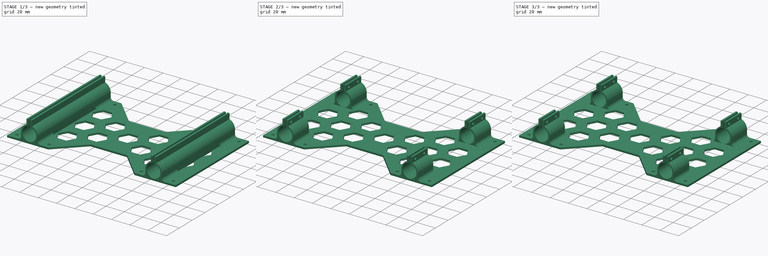
[diagram: build sequence overview — one tinted view per stage of 3, left to right]
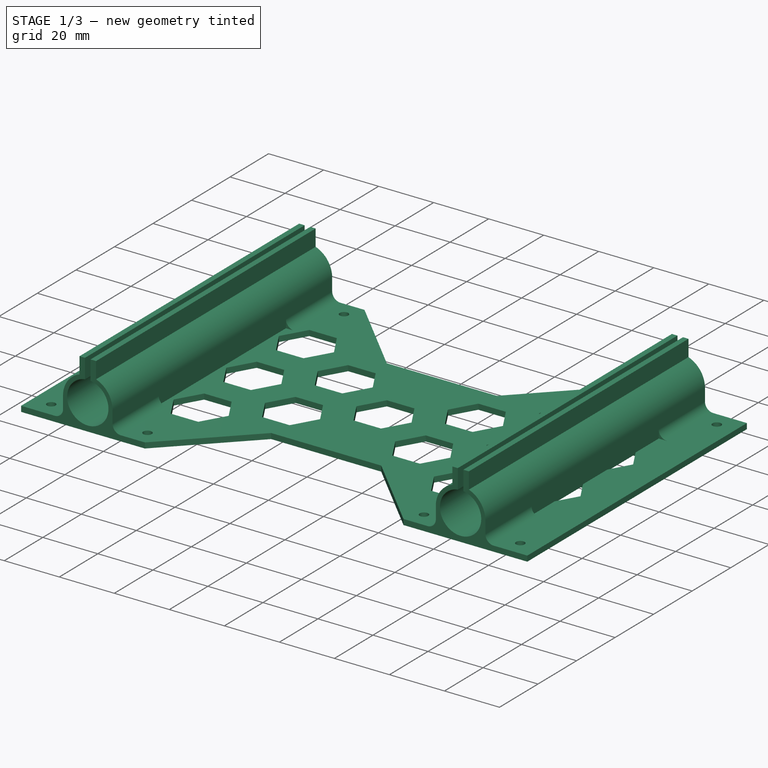
[diagram: stage 1 of 3 — iso view after this stage's code; geometry added in this stage tinted green]
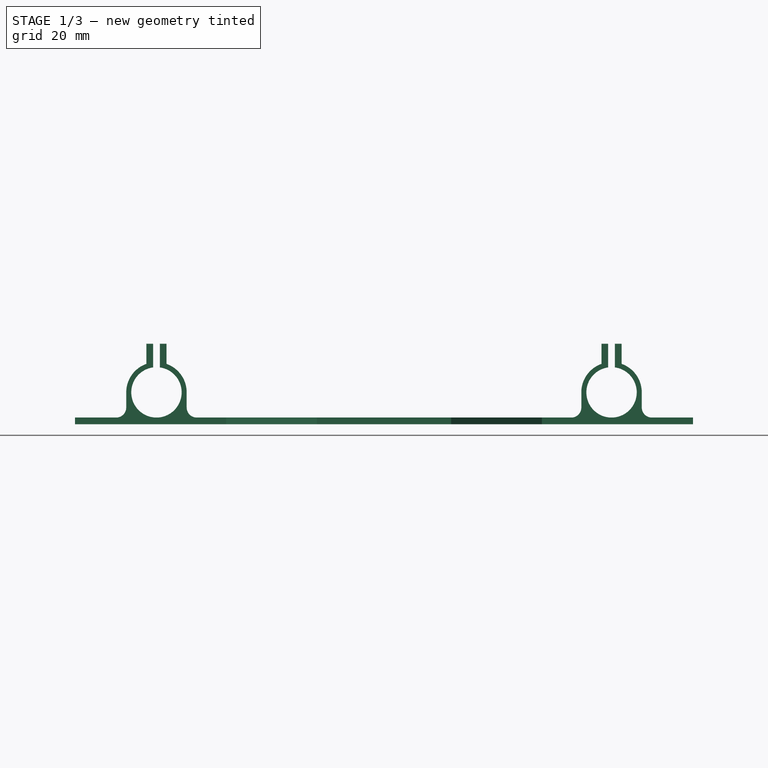
[diagram: stage 1 of 3 — front view after this stage's code; geometry added in this stage tinted green]
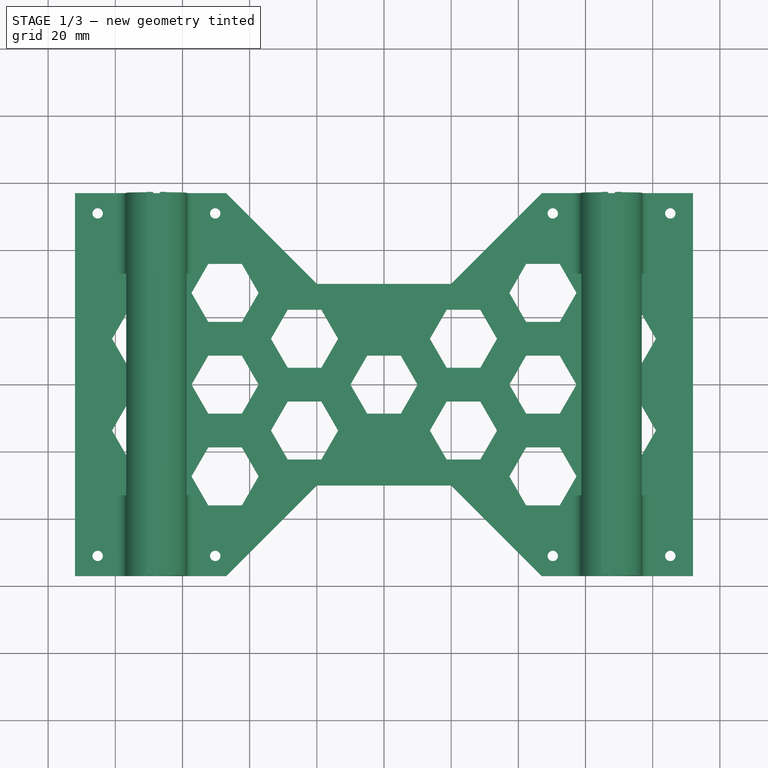
[diagram: stage 1 of 3 — top view after this stage's code; geometry added in this stage tinted green]
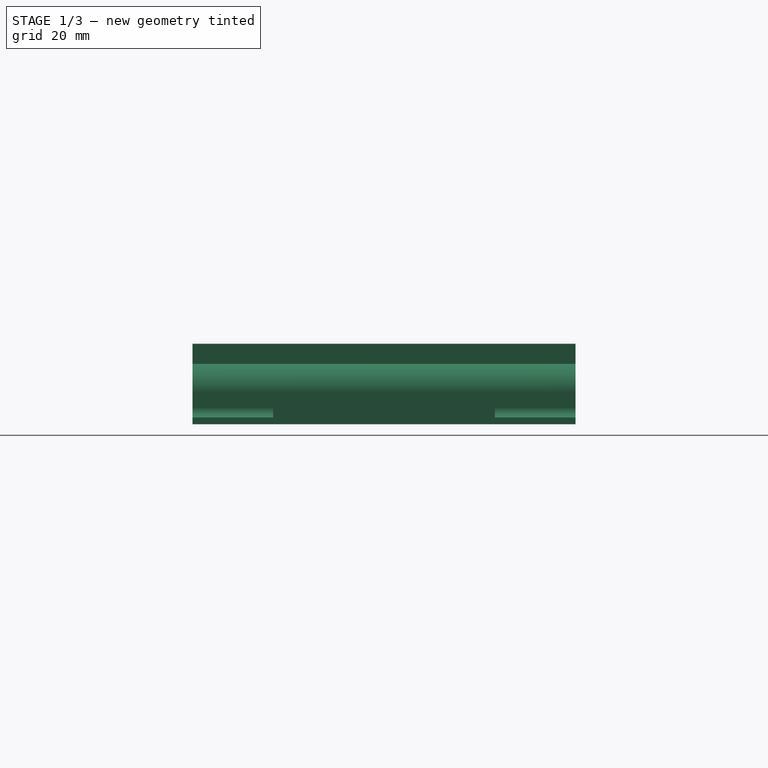
[diagram: stage 1 of 3 — right view after this stage's code; geometry added in this stage tinted green]
FCSTD DOCUMENT  (FreeCAD 0.16R6707 (Git))
Label: T-MAX Y Bearing Holders
License: All rights reserved
LicenseURL: http://en.wikipedia.org/wiki/All_rights_reserved
objects: Sketcher::SketchObject×3, PartDesign::Pad×2, PartDesign::Pocket×1, Part::Fuse×1, Part::Feature×1, Part::Fillet×1
note: 12 computed .brp shape members not serialized (recipe doc carries the construction recipe); baked Part::Feature solids carry a one-line shape summary decoded from their .brp

FEATURE [Sketcher::SketchObject] Sketch001
  Placement = pos=(0,0,0) rot=(1,0,0;1.5708rad)
  expr: Constraints[40] = Constraints.LM8UU_Radius + 0.5
  expr: Constraints.Constraint19 = Constraints.LM8UU_Radius + 1.5
  sketch-geometry (28):
    g0: LineSegment StartX=-58.75 StartY=1.5 StartZ=0 EndX=-58.75 EndY=9.5 EndZ=0
    g1: LineSegment StartX=-76.75 StartY=9.5 StartZ=0 EndX=-76.75 EndY=1.5 EndZ=0
    g2: LineSegment StartX=-64.75 StartY=17.9853 StartZ=0 EndX=-64.75 EndY=23.9853 EndZ=0
    g3: LineSegment StartX=-70.75 StartY=23.9853 StartZ=0 EndX=-70.75 EndY=17.9853 EndZ=0
    g4: ArcOfCircle CenterX=-67.75 CenterY=9.5 CenterZ=0 NormalX=0 NormalY=0 NormalZ=1 Radius=9 StartAngle=1.91063 EndAngle=3.14159
    g5: LineSegment StartX=-68.75 StartY=23.9853 StartZ=0 EndX=-68.75 EndY=16.933 EndZ=0
    g6: LineSegment StartX=-66.75 StartY=23.9853 StartZ=0 EndX=-66.75 EndY=16.933 EndZ=0
    g7: LineSegment StartX=-70.75 StartY=23.9853 StartZ=0 EndX=-68.75 EndY=23.9853 EndZ=0
    g8: LineSegment StartX=-66.75 StartY=23.9853 StartZ=0 EndX=-64.75 EndY=23.9853 EndZ=0
    g9: ArcOfCircle CenterX=-67.75 CenterY=9.5 CenterZ=0 NormalX=0 NormalY=0 NormalZ=1 Radius=9 StartAngle=0 EndAngle=1.23096
    g10: ArcOfCircle CenterX=-67.75 CenterY=9.5 CenterZ=0 NormalX=0 NormalY=0 NormalZ=1 Radius=7.5 StartAngle=1.70453 EndAngle=7.72025
    g11: LineSegment [constr] StartX=-68.75 StartY=23.9853 StartZ=0 EndX=-66.75 EndY=23.9853 EndZ=0
    g12: LineSegment StartX=-76.75 StartY=1.5 StartZ=0 EndX=-58.75 EndY=1.5 EndZ=0
    g13: LineSegment [constr] StartX=-67.75 StartY=23.9853 StartZ=0 EndX=-67.75 EndY=1.5 EndZ=0
    g14: LineSegment StartX=76.75 StartY=1.5 StartZ=0 EndX=76.75 EndY=9.5 EndZ=0
    g15: LineSegment StartX=58.75 StartY=9.5 StartZ=0 EndX=58.75 EndY=1.5 EndZ=0
    g16: LineSegment StartX=70.75 StartY=17.9853 StartZ=0 EndX=70.75 EndY=23.9853 EndZ=0
    g17: LineSegment StartX=64.75 StartY=23.9853 StartZ=0 EndX=64.75 EndY=17.9853 EndZ=0
    g18: ArcOfCircle CenterX=67.75 CenterY=9.5 CenterZ=0 NormalX=0 NormalY=0 NormalZ=1 Radius=9 StartAngle=1.91063 EndAngle=3.14159
    g19: LineSegment StartX=66.75 StartY=23.9853 StartZ=0 EndX=66.75 EndY=16.933 EndZ=0
    g20: LineSegment StartX=68.75 StartY=23.9853 StartZ=0 EndX=68.75 EndY=16.933 EndZ=0
    g21: LineSegment StartX=64.75 StartY=23.9853 StartZ=0 EndX=66.75 EndY=23.9853 EndZ=0
    g22: LineSegment StartX=68.75 StartY=23.9853 StartZ=0 EndX=70.75 EndY=23.9853 EndZ=0
    g23: ArcOfCircle CenterX=67.75 CenterY=9.5 CenterZ=0 NormalX=0 NormalY=0 NormalZ=1 Radius=9 StartAngle=0 EndAngle=1.23096
    g24: ArcOfCircle CenterX=67.75 CenterY=9.5 CenterZ=0 NormalX=0 NormalY=0 NormalZ=1 Radius=7.5 StartAngle=1.70453 EndAngle=7.72025
    g25: LineSegment [constr] StartX=66.75 StartY=23.9853 StartZ=0 EndX=68.75 EndY=23.9853 EndZ=0
    g26: LineSegment StartX=58.75 StartY=1.5 StartZ=0 EndX=76.75 EndY=1.5 EndZ=0
    g27: LineSegment [constr] StartX=67.75 StartY=23.9853 StartZ=0 EndX=67.75 EndY=1.5 EndZ=0
  constraints (85):
    c: Vertical(g0)
    c: Vertical(g1)
    c: Vertical(g2)
    c: Vertical(g3)
    c: Radius(g4) = 9  'Constraint19'
    c: Vertical(g5)  'Constraint13'
    c: Vertical(g6)  'Constraint12'
    c: Coincident(g7,g3)  'Constraint9'
    c: Coincident(g7,g5)
    c: Coincident(g8,g6)
    c: Coincident(g8,g2)
    c: Horizontal(g8)
    c: Horizontal(g7)
    c: Coincident(g4,g3)
    c: Coincident(g9,g2)
    c: DistanceY(g-1,g1) = 1.5
    c: DistanceY(g3,g3) = 6
    c: DistanceX(g8,g8) = 2
    c: Equal(g4,g9)
    c: Coincident(g4,g1)
    c: Tangent(g1,g4) = -1.5708
    c: Coincident(g0,g9)
    c: Tangent(g0,g9) = -1.5708
    c: Radius(g10) = 7.5  'LM8UU_Radius'
    c: Coincident(g10,g5)  'Constraint31'
    c: Coincident(g10,g6)  'Constraint33'
    c: DistanceX(g4,g-1) = 67.75  'Constraint32'
    c: Coincident(g11,g5)  'Constraint30'
    c: Coincident(g11,g6)  'Constraint29'
    c: Horizontal(g11)
    c: Equal(g8,g11)
    c: Equal(g11,g7)
    c: Equal(g3,g2)
    c: Horizontal(g12)
    c: PointOnObject(g13,g11)
    c: PointOnObject(g13,g12)
    c: Vertical(g13)
    c: PointOnObject(g4,g13)
    c: Coincident(g1,g12)
    c: Coincident(g0,g12)
    c: Distance(g4,g12) = 8
    c: Coincident(g4,g9)
    c: Coincident(g4,g10)
    c: Vertical(g14)
    c: Vertical(g15)
    c: Vertical(g16)
    c: Vertical(g17)
    c: Equal(g4,g18) = 9  'Constraint19'
    c: Vertical(g19)  'Constraint13'
    c: Vertical(g20)  'Constraint12'
    c: Coincident(g21,g17)  'Constraint9'
    c: Coincident(g21,g19)
    c: Coincident(g22,g20)
    c: Coincident(g22,g16)
    c: Horizontal(g22)
    c: Horizontal(g21)
    c: Coincident(g18,g17)
    c: Coincident(g23,g16)
    c: Equal(g3,g17) = 5
    c: Equal(g8,g22) = 2
    c: Equal(g18,g23)
    c: Coincident(g18,g15)
    c: Tangent(g15,g18) = -1.5708
    c: Coincident(g14,g23)
    c: Tangent(g14,g23) = -1.5708
    c: Equal(g10,g24) = 7.5  'LM8UU_Radius'
    c: Coincident(g24,g19)  'Constraint31'
    c: Coincident(g24,g20)  'Constraint33'
    c: Coincident(g25,g19)  'Constraint30'
    c: Coincident(g25,g20)  'Constraint29'
    c: Horizontal(g25)
    c: Equal(g22,g25)
    c: Equal(g25,g21)
    c: Equal(g17,g16)
    c: Horizontal(g26)
    c: PointOnObject(g27,g25)
    c: PointOnObject(g27,g26)
    c: Vertical(g27)
    c: PointOnObject(g18,g27)
    c: Coincident(g15,g26)
    c: Coincident(g14,g26)
    c: Distance(g18,g26) = 8
    c: Coincident(g18,g23)
    c: Coincident(g18,g24)
    c: Symmetric(g0,g15,g-2)
FEATURE [PartDesign::Pad] Pad001
  Length = 57
  Length2 = 57
  Placement = pos=(0,0,0) rot=(1,0,0;1.5708rad)
  Sketch = -> Sketch001
  Type = 4
FEATURE [Part::Feature] Fusion001
  shape: bbox 184 x 114 x 23.99 mm, 180 faces (baked)
FEATURE [Part::Fillet] Fillet
  Base = -> Fusion001
  Edges = 24 edges r=3: [Edge115,Edge118,Edge124,Edge127,Edge131,Edge134,Edge140,Edge143,Edge356,Edge361,Edge372,Edge377,Edge387,Edge393,Edge404,Edge410,Edge421,Edge432,Edge445,Edge456,Edge469,Edge480,Edge493,Edge504]
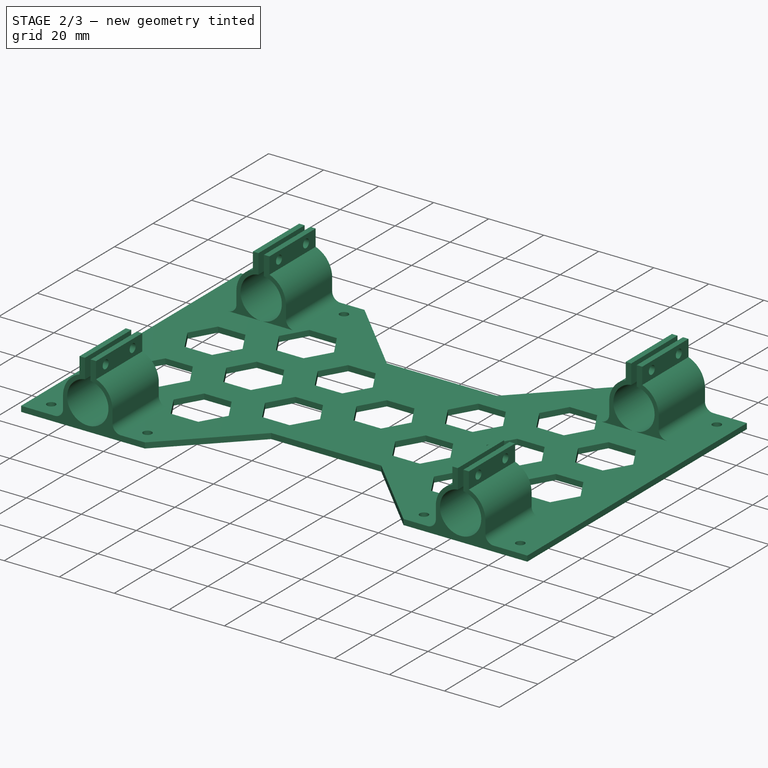
[diagram: stage 2 of 3 — iso view after this stage's code; geometry added in this stage tinted green]
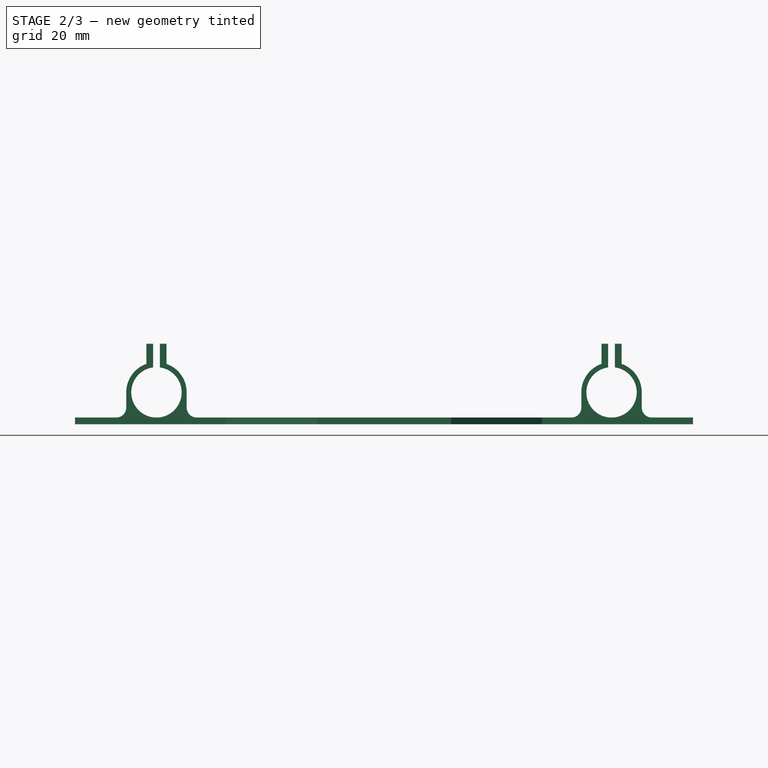
[diagram: stage 2 of 3 — front view after this stage's code; geometry added in this stage tinted green]
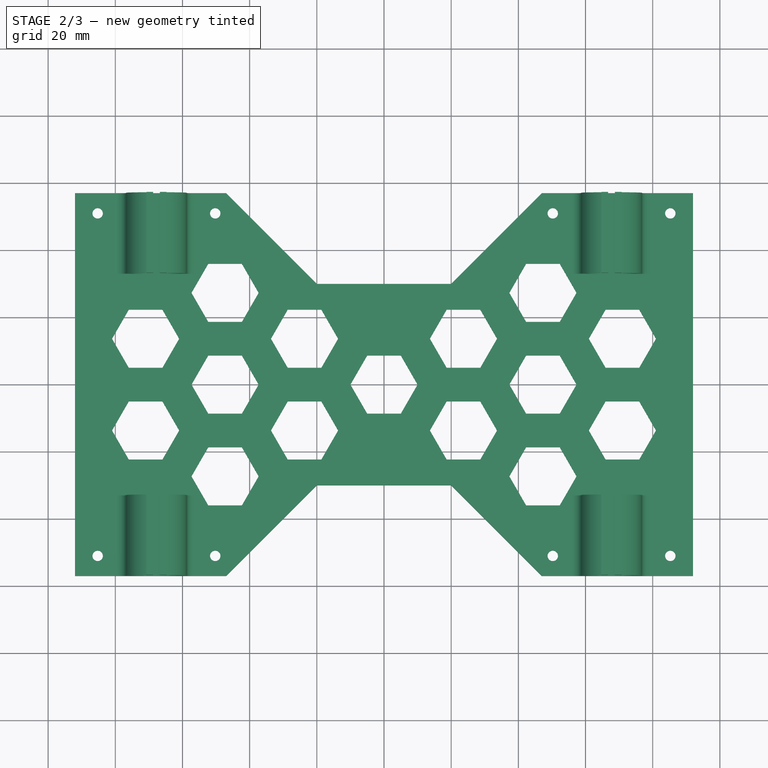
[diagram: stage 2 of 3 — top view after this stage's code; geometry added in this stage tinted green]
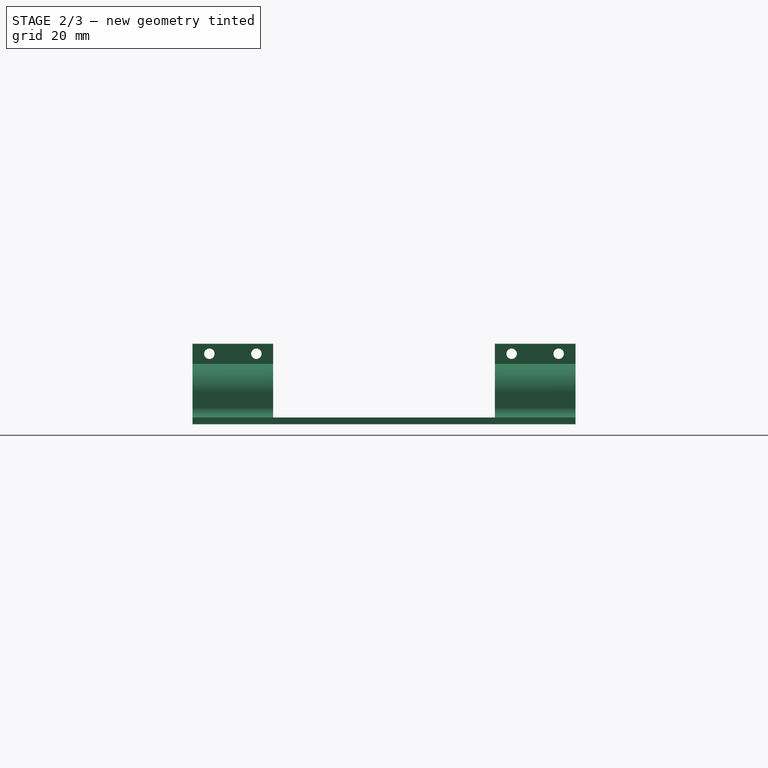
[diagram: stage 2 of 3 — right view after this stage's code; geometry added in this stage tinted green]
FEATURE [Sketcher::SketchObject] Sketch002
  Placement = pos=(-76.75,0,0) rot=(0.707107,0,-0.707107;3.14159rad)
  Support = -> Pad001 [Face17]
  sketch-geometry (11):
    g0: LineSegment StartX=-25.5 StartY=33 StartZ=0 EndX=-1.5 EndY=33 EndZ=0
    g1: LineSegment StartX=-1.5 StartY=33 StartZ=0 EndX=-1.5 EndY=-33 EndZ=0
    g2: LineSegment StartX=-1.5 StartY=-33 StartZ=0 EndX=-25.5 EndY=-33 EndZ=0
    g3: LineSegment StartX=-25.5 StartY=-33 StartZ=0 EndX=-25.5 EndY=33 EndZ=0
    g4: Circle CenterX=-21 CenterY=52 CenterZ=0 NormalX=0 NormalY=0 NormalZ=1 Radius=1.55
    g5: Circle CenterX=-21 CenterY=38 CenterZ=0 NormalX=0 NormalY=0 NormalZ=1 Radius=1.55
    g6: LineSegment [constr] StartX=-21 StartY=52 StartZ=0 EndX=-21 EndY=38 EndZ=0
    g7: Circle CenterX=-21 CenterY=-38 CenterZ=0 NormalX=0 NormalY=0 NormalZ=1 Radius=1.55
    g8: Circle CenterX=-21 CenterY=-52 CenterZ=0 NormalX=0 NormalY=0 NormalZ=1 Radius=1.55
    g9: LineSegment [constr] StartX=-21 StartY=-38 StartZ=0 EndX=-21 EndY=-52 EndZ=0
    g10: LineSegment [constr] StartX=-21 StartY=38 StartZ=0 EndX=-21 EndY=-38 EndZ=0
  constraints (31):
    c: Coincident(g0,g1)
    c: Coincident(g1,g2)
    c: Coincident(g2,g3)
    c: Coincident(g3,g0)
    c: Horizontal(g0)
    c: Horizontal(g2)
    c: Vertical(g1)
    c: Vertical(g3)
    c: DistanceX(g-2,g0) = -1.5
    c: Symmetric(g1,g0,g-1)
    c: Distance(g0) = 24
    c: DistanceY(g3,g3) = 66
    c: DistanceX(g4,g-1) = 21
    c: Coincident(g6,g4)
    c: Coincident(g6,g5)
    c: Vertical(g6)
    c: Radius(g4) = 1.55
    c: Equal(g4,g5)
    c: Distance(g5,g0) = 5
    c: Distance(g6) = 14
    c: Coincident(g9,g7)
    c: Coincident(g9,g8)
    c: Vertical(g9)
    c: Equal(g4,g7) = 1.55
    c: Equal(g7,g8)
    c: Equal(g6,g9) = 14
    c: Distance(g7,g2) = 5
    c: Equal(g9,g6)
    c: Coincident(g10,g5)
    c: Coincident(g10,g7)
    c: Vertical(g10)
FEATURE [PartDesign::Pocket] Pocket
  Length = 0
  Placement = pos=(0,0,0) rot=(1,0,0;1.5708rad)
  Sketch = -> Sketch002
  Type = 3
  UpToFace = -> Pad001 [Face5]
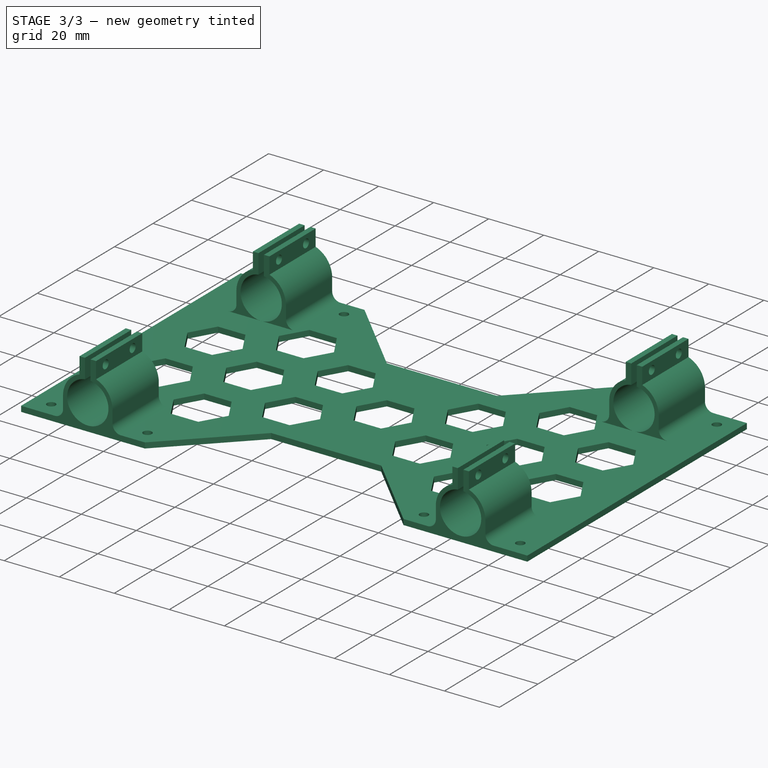
[diagram: stage 3 of 3 — iso view after this stage's code; geometry added in this stage tinted green]
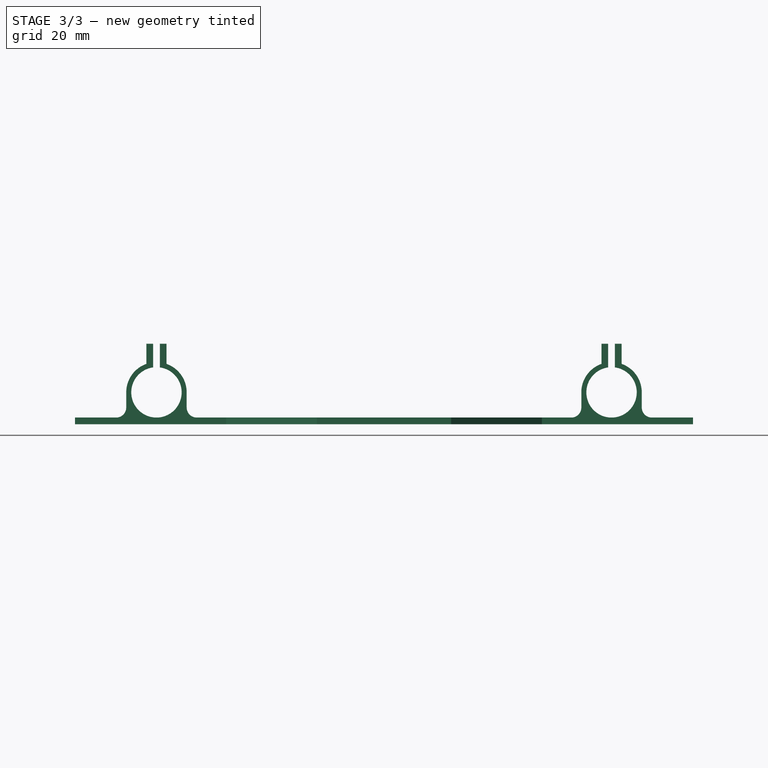
[diagram: stage 3 of 3 — front view after this stage's code; geometry added in this stage tinted green]
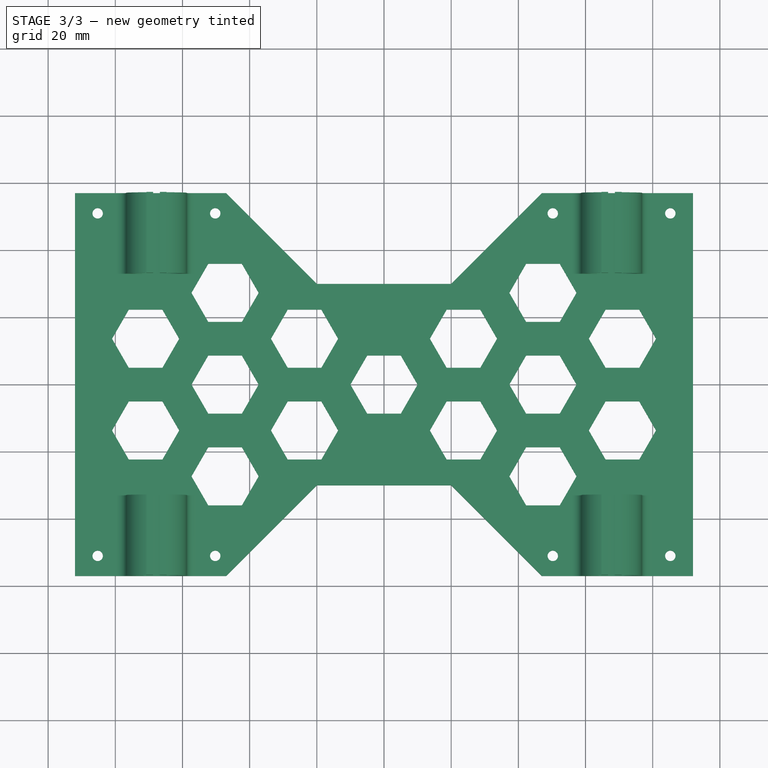
[diagram: stage 3 of 3 — top view after this stage's code; geometry added in this stage tinted green]
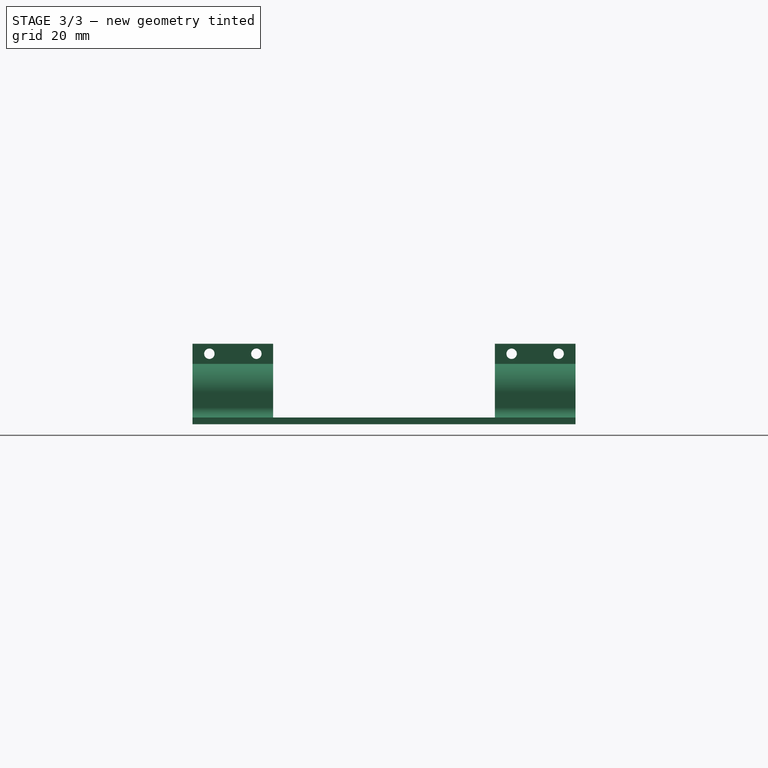
[diagram: stage 3 of 3 — right view after this stage's code; geometry added in this stage tinted green]
FEATURE [Sketcher::SketchObject] Sketch
  sketch-geometry (143):
    g0: LineSegment StartX=92 StartY=57 StartZ=0 EndX=92 EndY=-57 EndZ=0
    g1: LineSegment StartX=-92 StartY=-57 StartZ=0 EndX=-92 EndY=57 EndZ=0
    g2: Circle CenterX=-85.25 CenterY=51 CenterZ=0 NormalX=0 NormalY=0 NormalZ=1 Radius=1.55
    g3: LineSegment StartX=-47 StartY=57 StartZ=0 EndX=-20 EndY=30 EndZ=0
    g4: LineSegment StartX=20 StartY=30 StartZ=0 EndX=47 EndY=57 EndZ=0
    g5: LineSegment StartX=-20 StartY=30 StartZ=0 EndX=20 EndY=30 EndZ=0
    g6: LineSegment StartX=-92 StartY=57 StartZ=0 EndX=-47 EndY=57 EndZ=0
    g7: LineSegment StartX=47 StartY=57 StartZ=0 EndX=92 EndY=57 EndZ=0
    g8: Circle CenterX=-50.25 CenterY=51 CenterZ=0 NormalX=0 NormalY=0 NormalZ=1 Radius=1.55
    g9: LineSegment [constr] StartX=-85.25 StartY=51 StartZ=0 EndX=-50.25 EndY=51 EndZ=0
    g10: Circle CenterX=85.25 CenterY=51 CenterZ=0 NormalX=0 NormalY=0 NormalZ=1 Radius=1.55
    g11: Circle CenterX=50.25 CenterY=51 CenterZ=0 NormalX=0 NormalY=0 NormalZ=1 Radius=1.55
    g12: LineSegment [constr] StartX=85.25 StartY=51 StartZ=0 EndX=50.25 EndY=51 EndZ=0
    g13: Circle CenterX=-85.25 CenterY=-51 CenterZ=0 NormalX=0 NormalY=0 NormalZ=1 Radius=1.55
    g14: LineSegment StartX=-47 StartY=-57 StartZ=0 EndX=-20 EndY=-30 EndZ=0
    g15: LineSegment StartX=20 StartY=-30 StartZ=0 EndX=47 EndY=-57 EndZ=0
    g16: LineSegment StartX=-20 StartY=-30 StartZ=0 EndX=20 EndY=-30 EndZ=0
    g17: LineSegment StartX=-92 StartY=-57 StartZ=0 EndX=-47 EndY=-57 EndZ=0
    g18: LineSegment StartX=47 StartY=-57 StartZ=0 EndX=92 EndY=-57 EndZ=0
    g19: Circle CenterX=-50.25 CenterY=-51 CenterZ=0 NormalX=0 NormalY=0 NormalZ=1 Radius=1.55
    g20: LineSegment [constr] StartX=-85.25 StartY=-51 StartZ=0 EndX=-50.25 EndY=-51 EndZ=0
    g21: Circle CenterX=85.25 CenterY=-51 CenterZ=0 NormalX=0 NormalY=0 NormalZ=1 Radius=1.55
    g22: Circle CenterX=50.25 CenterY=-51 CenterZ=0 NormalX=0 NormalY=0 NormalZ=1 Radius=1.55
    g23: LineSegment [constr] StartX=85.25 StartY=-51 StartZ=0 EndX=50.25 EndY=-51 EndZ=0
    g24: LineSegment StartX=-65.9808 StartY=22.3205 StartZ=0 EndX=-75.9808 EndY=22.3205 EndZ=0
    g25: LineSegment StartX=-75.9808 StartY=22.3205 StartZ=0 EndX=-80.9808 EndY=13.6603 EndZ=0
    g26: LineSegment StartX=-80.9808 StartY=13.6603 StartZ=0 EndX=-75.9808 EndY=5 EndZ=0
    g27: LineSegment StartX=-75.9808 StartY=5 StartZ=0 EndX=-65.9808 EndY=5 EndZ=0
    g28: LineSegment StartX=-65.9808 StartY=5 StartZ=0 EndX=-60.9808 EndY=13.6603 EndZ=0
    g29: LineSegment StartX=-60.9808 StartY=13.6603 StartZ=0 EndX=-65.9808 EndY=22.3205 EndZ=0
    g30: Circle [constr] CenterX=-70.9808 CenterY=13.6603 CenterZ=0 NormalX=0 NormalY=0 NormalZ=1 Radius=10
    g31: LineSegment StartX=-42.3205 StartY=8.66025 StartZ=0 EndX=-52.3205 EndY=8.66025 EndZ=0
    g32: LineSegment StartX=-52.3205 StartY=8.66025 StartZ=0 EndX=-57.3205 EndY=0 EndZ=0
    g33: LineSegment StartX=-57.3205 StartY=0 StartZ=0 EndX=-52.3205 EndY=-8.66025 EndZ=0
    g34: LineSegment StartX=-52.3205 StartY=-8.66025 StartZ=0 EndX=-42.3205 EndY=-8.66025 EndZ=0
    g35: LineSegment StartX=-42.3205 StartY=-8.66025 StartZ=0 EndX=-37.3205 EndY=0 EndZ=0
    g36: LineSegment StartX=-37.3205 StartY=0 StartZ=0 EndX=-42.3205 EndY=8.66025 EndZ=0
    g37: Circle [constr] CenterX=-47.3205 CenterY=0 CenterZ=0 NormalX=0 NormalY=0 NormalZ=1 Radius=10
    g38: LineSegment [constr] StartX=-60.9808 StartY=13.6603 StartZ=0 EndX=-52.3205 EndY=8.66025 EndZ=0
    g39: LineSegment StartX=-65.9808 StartY=-5 StartZ=0 EndX=-75.9808 EndY=-5 EndZ=0
    g40: LineSegment StartX=-75.9808 StartY=-5 StartZ=0 EndX=-80.9808 EndY=-13.6603 EndZ=0
    g41: LineSegment StartX=-80.9808 StartY=-13.6603 StartZ=0 EndX=-75.9808 EndY=-22.3205 EndZ=0
    g42: LineSegment StartX=-75.9808 StartY=-22.3205 StartZ=0 EndX=-65.9808 EndY=-22.3205 EndZ=0
    g43: LineSegment StartX=-65.9808 StartY=-22.3205 StartZ=0 EndX=-60.9808 EndY=-13.6603 EndZ=0
    g44: LineSegment StartX=-60.9808 StartY=-13.6603 StartZ=0 EndX=-65.9808 EndY=-5 EndZ=0
    g45: Circle [constr] CenterX=-70.9808 CenterY=-13.6603 CenterZ=0 NormalX=0 NormalY=0 NormalZ=1 Radius=10
    g46: LineSegment [constr] StartX=-52.3205 StartY=-8.66025 StartZ=0 EndX=-60.9808 EndY=-13.6603 EndZ=0
    g47: LineSegment StartX=-18.6603 StartY=22.3205 StartZ=0 EndX=-28.6603 EndY=22.3205 EndZ=0
    g48: LineSegment StartX=-28.6603 StartY=22.3205 StartZ=0 EndX=-33.6603 EndY=13.6603 EndZ=0
    g49: LineSegment StartX=-33.6603 StartY=13.6603 StartZ=0 EndX=-28.6603 EndY=5 EndZ=0
    g50: LineSegment StartX=-28.6603 StartY=5 StartZ=0 EndX=-18.6603 EndY=5 EndZ=0
    g51: LineSegment StartX=-18.6603 StartY=5 StartZ=0 EndX=-13.6603 EndY=13.6603 EndZ=0
    g52: LineSegment StartX=-13.6603 StartY=13.6603 StartZ=0 EndX=-18.6603 EndY=22.3205 EndZ=0
    g53: Circle [constr] CenterX=-23.6603 CenterY=13.6603 CenterZ=0 NormalX=0 NormalY=0 NormalZ=1 Radius=10
    g54: LineSegment StartX=5 StartY=8.66025 StartZ=0 EndX=-5 EndY=8.66025 EndZ=0
    g55: LineSegment StartX=-5 StartY=8.66025 StartZ=0 EndX=-10 EndY=0 EndZ=0
    g56: LineSegment StartX=-10 StartY=0 StartZ=0 EndX=-5 EndY=-8.66025 EndZ=0
    g57: LineSegment StartX=-5 StartY=-8.66025 StartZ=0 EndX=5 EndY=-8.66025 EndZ=0
    g58: LineSegment StartX=5 StartY=-8.66025 StartZ=0 EndX=10 EndY=0 EndZ=0
    g59: LineSegment StartX=10 StartY=0 StartZ=0 EndX=5 EndY=8.66025 EndZ=0
    g60: Circle [constr] CenterX=0 CenterY=0 CenterZ=0 NormalX=0 NormalY=0 NormalZ=1 Radius=10
    g61: LineSegment [constr] StartX=-13.6603 StartY=13.6603 StartZ=0 EndX=-5 EndY=8.66025 EndZ=0
    g62: LineSegment StartX=-18.6603 StartY=-5 StartZ=0 EndX=-28.6603 EndY=-5 EndZ=0
    g63: LineSegment StartX=-28.6603 StartY=-5 StartZ=0 EndX=-33.6603 EndY=-13.6603 EndZ=0
    g64: LineSegment StartX=-33.6603 StartY=-13.6603 StartZ=0 EndX=-28.6603 EndY=-22.3205 EndZ=0
    g65: LineSegment StartX=-28.6603 StartY=-22.3205 StartZ=0 EndX=-18.6603 EndY=-22.3205 EndZ=0
    g66: LineSegment StartX=-18.6603 StartY=-22.3205 StartZ=0 EndX=-13.6603 EndY=-13.6603 EndZ=0
    g67: LineSegment StartX=-13.6603 StartY=-13.6603 StartZ=0 EndX=-18.6603 EndY=-5 EndZ=0
    g68: Circle [constr] CenterX=-23.6603 CenterY=-13.6603 CenterZ=0 NormalX=0 NormalY=0 NormalZ=1 Radius=10
    g69: LineSegment [constr] StartX=-5 StartY=-8.66025 StartZ=0 EndX=-13.6603 EndY=-13.6603 EndZ=0
    g70: LineSegment [constr] StartX=-37.3205 StartY=0 StartZ=0 EndX=-28.6603 EndY=5 EndZ=0
    g71: LineSegment StartX=28.6603 StartY=22.3205 StartZ=0 EndX=18.6603 EndY=22.3205 EndZ=0
    g72: LineSegment StartX=18.6603 StartY=22.3205 StartZ=0 EndX=13.6603 EndY=13.6603 EndZ=0
    g73: LineSegment StartX=13.6603 StartY=13.6603 StartZ=0 EndX=18.6603 EndY=5 EndZ=0
    g74: LineSegment StartX=18.6603 StartY=5 StartZ=0 EndX=28.6603 EndY=5 EndZ=0
    g75: LineSegment StartX=28.6603 StartY=5 StartZ=0 EndX=33.6603 EndY=13.6603 EndZ=0
    g76: LineSegment StartX=33.6603 StartY=13.6603 StartZ=0 EndX=28.6603 EndY=22.3205 EndZ=0
    g77: Circle [constr] CenterX=23.6603 CenterY=13.6603 CenterZ=0 NormalX=0 NormalY=0 NormalZ=1 Radius=10
    g78: LineSegment [constr] StartX=10 StartY=0 StartZ=0 EndX=18.6603 EndY=5 EndZ=0
    g79: LineSegment StartX=28.6603 StartY=-5 StartZ=0 EndX=18.6603 EndY=-5 EndZ=0
    g80: LineSegment StartX=18.6603 StartY=-5 StartZ=0 EndX=13.6603 EndY=-13.6603 EndZ=0
    g81: LineSegment StartX=13.6603 StartY=-13.6603 StartZ=0 EndX=18.6603 EndY=-22.3205 EndZ=0
    g82: LineSegment StartX=18.6603 StartY=-22.3205 StartZ=0 EndX=28.6603 EndY=-22.3205 EndZ=0
    g83: LineSegment StartX=28.6603 StartY=-22.3205 StartZ=0 EndX=33.6603 EndY=-13.6603 EndZ=0
    g84: LineSegment StartX=33.6603 StartY=-13.6603 StartZ=0 EndX=28.6603 EndY=-5 EndZ=0
    g85: Circle [constr] CenterX=23.6603 CenterY=-13.6603 CenterZ=0 NormalX=0 NormalY=0 NormalZ=1 Radius=10
    g86: LineSegment [constr] StartX=10 StartY=0 StartZ=0 EndX=18.6603 EndY=-5 EndZ=0
    g87: LineSegment StartX=52.3205 StartY=8.66025 StartZ=0 EndX=42.3205 EndY=8.66025 EndZ=0
    g88: LineSegment StartX=42.3205 StartY=8.66025 StartZ=0 EndX=37.3205 EndY=0 EndZ=0
    g89: LineSegment StartX=37.3205 StartY=0 StartZ=0 EndX=42.3205 EndY=-8.66025 EndZ=0
    g90: LineSegment StartX=42.3205 StartY=-8.66025 StartZ=0 EndX=52.3205 EndY=-8.66025 EndZ=0
    g91: LineSegment StartX=52.3205 StartY=-8.66025 StartZ=0 EndX=57.3205 EndY=0 EndZ=0
    g92: LineSegment StartX=57.3205 StartY=0 StartZ=0 EndX=52.3205 EndY=8.66025 EndZ=0
    g93: Circle [constr] CenterX=47.3205 CenterY=0 CenterZ=0 NormalX=0 NormalY=0 NormalZ=1 Radius=10
    g94: LineSegment StartX=75.9808 StartY=22.3205 StartZ=0 EndX=65.9808 EndY=22.3205 EndZ=0
    g95: LineSegment StartX=65.9808 StartY=22.3205 StartZ=0 EndX=60.9808 EndY=13.6603 EndZ=0
    g96: LineSegment StartX=60.9808 StartY=13.6603 StartZ=0 EndX=65.9808 EndY=5 EndZ=0
    g97: LineSegment StartX=65.9808 StartY=5 StartZ=0 EndX=75.9808 EndY=5 EndZ=0
    g98: LineSegment StartX=75.9808 StartY=5 StartZ=0 EndX=80.9808 EndY=13.6603 EndZ=0
    g99: LineSegment StartX=80.9808 StartY=13.6603 StartZ=0 EndX=75.9808 EndY=22.3205 EndZ=0
    g100: Circle [constr] CenterX=70.9808 CenterY=13.6603 CenterZ=0 NormalX=0 NormalY=0 NormalZ=1 Radius=10
    g101: LineSegment [constr] StartX=57.3205 StartY=0 StartZ=0 EndX=65.9808 EndY=5 EndZ=0
    g102: LineSegment StartX=75.9808 StartY=-5 StartZ=0 EndX=65.9808 EndY=-5 EndZ=0
    g103: LineSegment StartX=65.9808 StartY=-5 StartZ=0 EndX=60.9808 EndY=-13.6603 EndZ=0
    g104: LineSegment StartX=60.9808 StartY=-13.6603 StartZ=0 EndX=65.9808 EndY=-22.3205 EndZ=0
    g105: LineSegment StartX=65.9808 StartY=-22.3205 StartZ=0 EndX=75.9808 EndY=-22.3205 EndZ=0
    g106: LineSegment StartX=75.9808 StartY=-22.3205 StartZ=0 EndX=80.9808 EndY=-13.6603 EndZ=0
    g107: LineSegment StartX=80.9808 StartY=-13.6603 StartZ=0 EndX=75.9808 EndY=-5 EndZ=0
    g108: Circle [constr] CenterX=70.9808 CenterY=-13.6603 CenterZ=0 NormalX=0 NormalY=0 NormalZ=1 Radius=10
    g109: LineSegment [constr] StartX=57.3205 StartY=0 StartZ=0 EndX=65.9808 EndY=-5 EndZ=0
    g110: LineSegment [constr] StartX=33.6603 StartY=13.6603 StartZ=0 EndX=42.3205 EndY=8.66025 EndZ=0
    g111: LineSegment StartX=-42.3205 StartY=35.9808 StartZ=0 EndX=-52.3205 EndY=35.9808 EndZ=0
    g112: LineSegment StartX=-52.3205 StartY=35.9808 StartZ=0 EndX=-57.3205 EndY=27.3205 EndZ=0
    g113: LineSegment StartX=-57.3205 StartY=27.3205 StartZ=0 EndX=-52.3205 EndY=18.6603 EndZ=0
    g114: LineSegment StartX=-52.3205 StartY=18.6603 StartZ=0 EndX=-42.3205 EndY=18.6603 EndZ=0
    g115: LineSegment StartX=-42.3205 StartY=18.6603 StartZ=0 EndX=-37.3205 EndY=27.3205 EndZ=0
    g116: LineSegment StartX=-37.3205 StartY=27.3205 StartZ=0 EndX=-42.3205 EndY=35.9808 EndZ=0
    g117: Circle [constr] CenterX=-47.3205 CenterY=27.3205 CenterZ=0 NormalX=0 NormalY=0 NormalZ=1 Radius=10
    g118: LineSegment [constr] StartX=-60.9808 StartY=13.6603 StartZ=0 EndX=-52.3205 EndY=18.6603 EndZ=0
    g119: LineSegment StartX=-42.3205 StartY=-18.6603 StartZ=0 EndX=-52.3205 EndY=-18.6603 EndZ=0
    g120: LineSegment StartX=-52.3205 StartY=-18.6603 StartZ=0 EndX=-57.3205 EndY=-27.3205 EndZ=0
    g121: LineSegment StartX=-57.3205 StartY=-27.3205 StartZ=0 EndX=-52.3205 EndY=-35.9808 EndZ=0
    g122: LineSegment StartX=-52.3205 StartY=-35.9808 StartZ=0 EndX=-42.3205 EndY=-35.9808 EndZ=0
    g123: LineSegment StartX=-42.3205 StartY=-35.9808 StartZ=0 EndX=-37.3205 EndY=-27.3205 EndZ=0
    g124: LineSegment StartX=-37.3205 StartY=-27.3205 StartZ=0 EndX=-42.3205 EndY=-18.6603 EndZ=0
    g125: Circle [constr] CenterX=-47.3205 CenterY=-27.3205 CenterZ=0 NormalX=0 NormalY=0 NormalZ=1 Radius=10
    g126: LineSegment [constr] StartX=-52.3205 StartY=-8.66025 StartZ=0 EndX=-52.3205 EndY=-18.6603 EndZ=0
    g127: LineSegment StartX=52.3205 StartY=35.9808 StartZ=0 EndX=42.3205 EndY=35.9808 EndZ=0
    g128: LineSegment StartX=42.3205 StartY=35.9808 StartZ=0 EndX=37.3205 EndY=27.3205 EndZ=0
    g129: LineSegment StartX=37.3205 StartY=27.3205 StartZ=0 EndX=42.3205 EndY=18.6603 EndZ=0
    g130: LineSegment StartX=42.3205 StartY=18.6603 StartZ=0 EndX=52.3205 EndY=18.6603 EndZ=0
    g131: LineSegment StartX=52.3205 StartY=18.6603 StartZ=0 EndX=57.3205 EndY=27.3205 EndZ=0
    g132: LineSegment StartX=57.3205 StartY=27.3205 StartZ=0 EndX=52.3205 EndY=35.9808 EndZ=0
    g133: Circle [constr] CenterX=47.3205 CenterY=27.3205 CenterZ=0 NormalX=0 NormalY=0 NormalZ=1 Radius=10
    g134: LineSegment [constr] StartX=33.6603 StartY=13.6603 StartZ=0 EndX=42.3205 EndY=18.6603 EndZ=0
    g135: LineSegment StartX=52.3205 StartY=-18.6603 StartZ=0 EndX=42.3205 EndY=-18.6603 EndZ=0
    g136: LineSegment StartX=42.3205 StartY=-18.6603 StartZ=0 EndX=37.3205 EndY=-27.3205 EndZ=0
    g137: LineSegment StartX=37.3205 StartY=-27.3205 StartZ=0 EndX=42.3205 EndY=-35.9808 EndZ=0
    g138: LineSegment StartX=42.3205 StartY=-35.9808 StartZ=0 EndX=52.3205 EndY=-35.9808 EndZ=0
    g139: LineSegment StartX=52.3205 StartY=-35.9808 StartZ=0 EndX=57.3205 EndY=-27.3205 EndZ=0
    g140: LineSegment StartX=57.3205 StartY=-27.3205 StartZ=0 EndX=52.3205 EndY=-18.6603 EndZ=0
    g141: Circle [constr] CenterX=47.3205 CenterY=-27.3205 CenterZ=0 NormalX=0 NormalY=0 NormalZ=1 Radius=10
    g142: LineSegment [constr] StartX=33.6603 StartY=-13.6603 StartZ=0 EndX=42.3205 EndY=-18.6603 EndZ=0
  constraints (353):
    c: Vertical(g0)
    c: Vertical(g1)
    c: Symmetric(g0,g1,g-2)
    c: Symmetric(g0,g0,g-1)
    c: Distance(g1) = 114
    c: Coincident(g5,g3)
    c: Coincident(g5,g4)
    c: Horizontal(g5)
    c: Perpendicular(g3,g4)
    c: Symmetric(g4,g3,g-2)
    c: Coincident(g6,g1)
    c: Coincident(g6,g3)
    c: Horizontal(g6)
    c: Coincident(g7,g4)
    c: Coincident(g7,g0)
    c: Horizontal(g7)
    c: Equal(g1,g0)
    c: Equal(g7,g6)
    c: Distance(g1,g0) = 184
    c: Distance(g6) = 45
    c: Coincident(g9,g2)
    c: Coincident(g9,g8)
    c: Horizontal(g9)
    c: DistanceX(g9,g9) = 35
    c: DistanceX(g8,g-1) = 50.25
    c: DistanceY(g2) = 51
    c: Coincident(g12,g10)
    c: Coincident(g12,g11)
    c: Horizontal(g12)
    c: Coincident(g16,g14)
    c: Coincident(g16,g15)
    c: Horizontal(g16)
    c: Perpendicular(g14,g15)
    c: Coincident(g17,g14)
    c: Horizontal(g17)
    c: Coincident(g18,g15)
    c: Horizontal(g18)
    c: Equal(g18,g17)
    c: Coincident(g20,g13)
    c: Coincident(g20,g19)
    c: Horizontal(g20)
    c: Coincident(g23,g21)
    c: Coincident(g23,g22)
    c: Horizontal(g23)
    c: Coincident(g1,g17)
    c: Coincident(g0,g18)
    c: Symmetric(g15,g14,g-2)
    c: Equal(g9,g12)
    c: Equal(g12,g23)
    c: Equal(g23,g20)
    c: Symmetric(g10,g21,g-1)
    c: Symmetric(g8,g11,g-2)
    c: Symmetric(g19,g22,g-2)
    c: Radius(g2) = 1.55
    c: Equal(g2,g8)
    c: Equal(g8,g11)
    c: Equal(g11,g10)
    c: Equal(g10,g21)
    c: Equal(g21,g22)
    c: Equal(g22,g13)
    c: Equal(g13,g19)
    c: Equal(g17,g6)
    c: Coincident(g24,g25)
    c: Coincident(g25,g26)
    c: Coincident(g26,g27)
    c: Coincident(g27,g28)
    c: Coincident(g28,g29)
    c: Coincident(g29,g24)
    c: Equal(g24, g25-g29) x5
    c: PointOnObject(g24,g30)
    c: PointOnObject(g25,g30)
    c: PointOnObject(g26,g30)
    c: PointOnObject(g27,g30)
    c: PointOnObject(g28,g30)
    c: PointOnObject(g29,g30)
    c: Horizontal(g24)
    c: Distance(g24) = 10
    c: Coincident(g31,g32)
    c: Coincident(g32,g33)
    c: Coincident(g33,g34)
    c: Coincident(g34,g35)
    c: Coincident(g35,g36)
    c: Coincident(g36,g31)
    c: Equal(g31, g32-g36) x5
    c: PointOnObject(g31,g37)
    c: PointOnObject(g32,g37)
    c: PointOnObject(g33,g37)
    c: PointOnObject(g34,g37)
    c: PointOnObject(g35,g37)
    c: PointOnObject(g36,g37)
    c: Horizontal(g31)
    c: Equal(g24,g31) = 10
    c: Coincident(g38,g31)
    c: Perpendicular(g38,g28)
    c: Distance(g38) = 10
    c: Coincident(g38,g28)
    c: Coincident(g39,g40)
    c: Coincident(g40,g41)
    c: Coincident(g41,g42)
    c: Coincident(g42,g43)
    c: Coincident(g43,g44)
    c: Coincident(g44,g39)
    c: Equal(g39, g40-g44) x5
    c: PointOnObject(g39,g45)
    c: PointOnObject(g40,g45)
    c: PointOnObject(g41,g45)
    c: PointOnObject(g42,g45)
    c: PointOnObject(g43,g45)
    c: PointOnObject(g44,g45)
    c: Horizontal(g39)
    c: Equal(g24,g39) = 10
    c: Coincident(g46,g33)
    c: Perpendicular(g46,g33)
    c: Coincident(g43,g46)
    c: Coincident(g47,g48)
    c: Coincident(g48,g49)
    c: Coincident(g49,g50)
    c: Coincident(g50,g51)
    c: Coincident(g51,g52)
    c: Coincident(g52,g47)
    c: Equal(g47, g48-g52) x5
    c: PointOnObject(g47,g53)
    c: PointOnObject(g48,g53)
    c: PointOnObject(g49,g53)
    c: PointOnObject(g50,g53)
    c: PointOnObject(g51,g53)
    c: PointOnObject(g52,g53)
    c: Horizontal(g47)
    c: Equal(g24,g47) = 10
    c: Coincident(g54,g55)
    c: Coincident(g55,g56)
    c: Coincident(g56,g57)
    c: Coincident(g57,g58)
    c: Coincident(g58,g59)
    c: Coincident(g59,g54)
    c: Equal(g54, g55-g59) x5
    c: PointOnObject(g54,g60)
    c: PointOnObject(g55,g60)
    c: PointOnObject(g56,g60)
    c: PointOnObject(g57,g60)
    c: PointOnObject(g58,g60)
    c: PointOnObject(g59,g60)
    c: Horizontal(g54)
    c: Equal(g47,g54) = 10
    c: Coincident(g61,g54)
    c: Perpendicular(g61,g51)
    c: Equal(g38,g61) = 10
    c: Coincident(g61,g51)
    c: Coincident(g62,g63)
    c: Coincident(g63,g64)
    c: Coincident(g64,g65)
    c: Coincident(g65,g66)
    c: Coincident(g66,g67)
    c: Coincident(g67,g62)
    c: Equal(g62, g63-g67) x5
    c: PointOnObject(g62,g68)
    c: PointOnObject(g63,g68)
    c: PointOnObject(g64,g68)
    c: PointOnObject(g65,g68)
    c: PointOnObject(g66,g68)
    c: PointOnObject(g67,g68)
    c: Horizontal(g62)
    c: Equal(g47,g62) = 10
    c: Coincident(g69,g56)
    c: Perpendicular(g69,g56)
    c: Equal(g46,g69) = 10
    c: Coincident(g66,g69)
    c: Coincident(g70,g35)
    c: Perpendicular(g36,g70)
    c: Coincident(g49,g70)
    c: Coincident(g71,g72)
    c: Coincident(g72,g73)
    c: Coincident(g73,g74)
    c: Coincident(g74,g75)
    c: Coincident(g75,g76)
    c: Coincident(g76,g71)
    c: Equal(g71, g72-g76) x5
    c: PointOnObject(g71,g77)
    c: PointOnObject(g72,g77)
    c: PointOnObject(g73,g77)
    c: PointOnObject(g74,g77)
    c: PointOnObject(g75,g77)
    c: PointOnObject(g76,g77)
    c: Horizontal(g71)
    c: Coincident(g78,g58)
    c: Coincident(g78,g73)
    c: Perpendicular(g78,g59)
    c: Coincident(g60,g-1)
    c: Equal(g46,g38)
    c: Equal(g70,g38)
    c: Equal(g78,g38)
    c: Equal(g24,g39)
    c: Equal(g39,g31)
    c: Equal(g31,g47)
    c: Equal(g47,g62)
    c: Equal(g62,g54)
    c: Equal(g54,g71)
    c: Coincident(g79,g80)
    c: Coincident(g80,g81)
    c: Coincident(g81,g82)
    c: Coincident(g82,g83)
    c: Coincident(g83,g84)
    c: Coincident(g84,g79)
    c: Equal(g79, g80-g84) x5
    c: PointOnObject(g79,g85)
    c: PointOnObject(g80,g85)
    c: PointOnObject(g81,g85)
    c: PointOnObject(g82,g85)
    c: PointOnObject(g83,g85)
    c: PointOnObject(g84,g85)
    c: Horizontal(g79)
    c: Coincident(g86,g58)
    c: Perpendicular(g58,g86)
    c: Equal(g86,g78)
    c: Coincident(g86,g79)
    c: Equal(g79,g54)
    c: Coincident(g87,g88)
    c: Coincident(g88,g89)
    c: Coincident(g89,g90)
    c: Coincident(g90,g91)
    c: Coincident(g91,g92)
    c: Coincident(g92,g87)
    c: Equal(g87, g88-g92) x5
    c: PointOnObject(g87,g93)
    c: PointOnObject(g88,g93)
    c: PointOnObject(g89,g93)
    c: PointOnObject(g90,g93)
    c: PointOnObject(g91,g93)
    c: PointOnObject(g92,g93)
    c: Horizontal(g87)
    c: Coincident(g94,g95)
    c: Coincident(g95,g96)
    c: Coincident(g96,g97)
    c: Coincident(g97,g98)
    c: Coincident(g98,g99)
    c: Coincident(g99,g94)
    c: Equal(g94, g95-g99) x5
    c: PointOnObject(g94,g100)
    c: PointOnObject(g95,g100)
    c: PointOnObject(g96,g100)
    c: PointOnObject(g97,g100)
    c: PointOnObject(g98,g100)
    c: PointOnObject(g99,g100)
    c: Horizontal(g94)
    c: Coincident(g101,g91)
    c: Coincident(g101,g96)
    c: Perpendicular(g101,g92)
    c: Equal(g87,g94)
    c: Coincident(g102,g103)
    c: Coincident(g103,g104)
    c: Coincident(g104,g105)
    c: Coincident(g105,g106)
    c: Coincident(g106,g107)
    c: Coincident(g107,g102)
    c: Equal(g102, g103-g107) x5
    c: PointOnObject(g102,g108)
    c: PointOnObject(g103,g108)
    c: PointOnObject(g104,g108)
    c: PointOnObject(g105,g108)
    c: PointOnObject(g106,g108)
    c: PointOnObject(g107,g108)
    c: Horizontal(g102)
    c: Coincident(g109,g91)
    c: Perpendicular(g91,g109)
    c: Equal(g109,g101)
    c: Coincident(g109,g102)
    c: Equal(g102,g87)
    c: Coincident(g110,g75)
    c: Perpendicular(g75,g110)
    c: Equal(g110,g78)
    c: Coincident(g87,g110)
    c: Equal(g101,g110)
    c: Equal(g94,g102)
    c: Equal(g102,g87)
    c: Equal(g87,g71)
    c: Coincident(g111,g112)
    c: Coincident(g112,g113)
    c: Coincident(g113,g114)
    c: Coincident(g114,g115)
    c: Coincident(g115,g116)
    c: Coincident(g116,g111)
    c: Equal(g111, g112-g116) x5
    c: PointOnObject(g111,g117)
    c: PointOnObject(g112,g117)
    c: PointOnObject(g113,g117)
    c: PointOnObject(g114,g117)
    c: PointOnObject(g115,g117)
    c: PointOnObject(g116,g117)
    c: Horizontal(g111)
    c: Coincident(g118,g28)
    c: Perpendicular(g29,g118)
    c: Equal(g118,g38)
    c: Coincident(g113,g118)
    c: Equal(g111,g24)
    c: Coincident(g119,g120)
    c: Coincident(g120,g121)
    c: Coincident(g121,g122)
    c: Coincident(g122,g123)
    c: Coincident(g123,g124)
    c: Coincident(g124,g119)
    c: Equal(g119, g120-g124) x5
    c: PointOnObject(g119,g125)
    c: PointOnObject(g120,g125)
    c: PointOnObject(g121,g125)
    c: PointOnObject(g122,g125)
    c: PointOnObject(g123,g125)
    c: PointOnObject(g124,g125)
    c: Horizontal(g119)
    c: Coincident(g126,g33)
    c: Vertical(g126)
    c: Equal(g126,g46)
    c: Coincident(g126,g119)
    c: Equal(g119,g31)
    c: Coincident(g127,g128)
    c: Coincident(g128,g129)
    c: Coincident(g129,g130)
    c: Coincident(g130,g131)
    c: Coincident(g131,g132)
    c: Coincident(g132,g127)
    c: Equal(g127, g128-g132) x5
    c: PointOnObject(g127,g133)
    c: PointOnObject(g128,g133)
    c: PointOnObject(g129,g133)
    c: PointOnObject(g130,g133)
    c: PointOnObject(g131,g133)
    c: PointOnObject(g132,g133)
    c: Horizontal(g127)
    c: Coincident(g134,g75)
    c: Perpendicular(g76,g134)
    c: Equal(g134,g110)
    c: Coincident(g134,g129)
    c: Equal(g127,g87)
    c: Coincident(g135,g136)
    c: Coincident(g136,g137)
    c: Coincident(g137,g138)
    c: Coincident(g138,g139)
    c: Coincident(g139,g140)
    c: Coincident(g140,g135)
    c: Equal(g135, g136-g140) x5
    c: PointOnObject(g135,g141)
    c: PointOnObject(g136,g141)
    c: PointOnObject(g137,g141)
    c: PointOnObject(g138,g141)
    c: PointOnObject(g139,g141)
    c: PointOnObject(g140,g141)
    c: Horizontal(g135)
    c: Coincident(g135,g142)
    c: Coincident(g142,g83)
    c: Perpendicular(g83,g142)
    c: Equal(g142,g110)
    c: Equal(g135,g71)
    c: Symmetric(g3,g14,g-1)
    c: DistanceY(g3,g3) = 27
FEATURE [PartDesign::Pad] Pad
  Length = 2
  Length2 = 100
  Sketch = -> Sketch
  Type = 0
FEATURE [Part::Fuse] Fusion
  Base = -> Pad
  Tool = -> Pocket
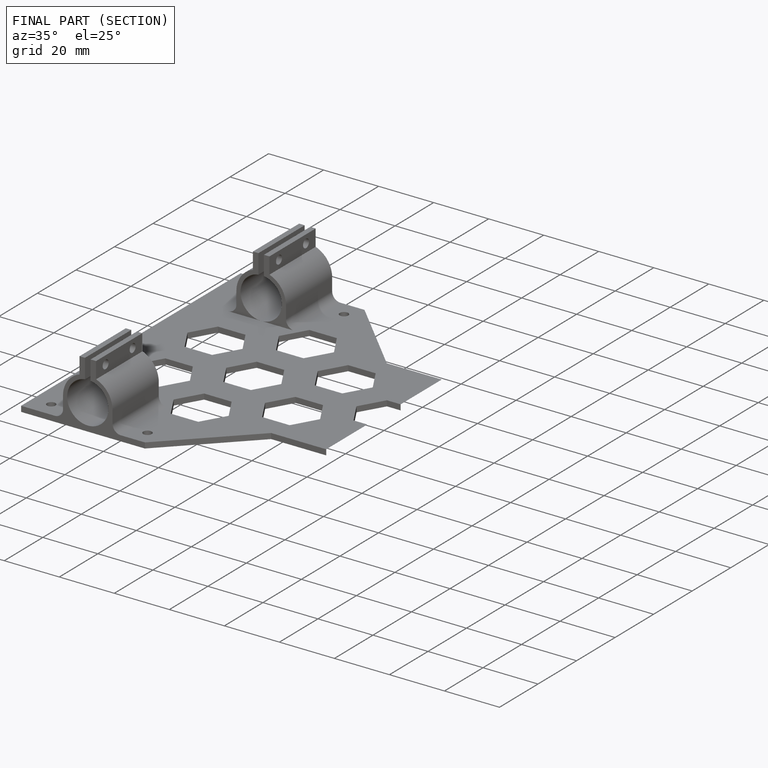
[diagram: finished part — half-section view (interior)]
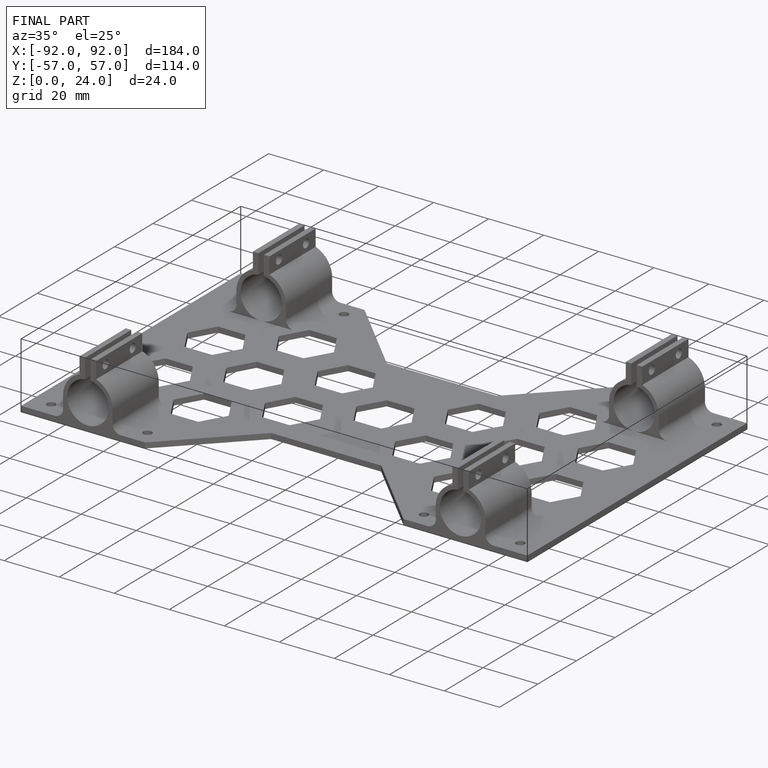
[diagram: finished part — iso view with bounding-box wireframe]
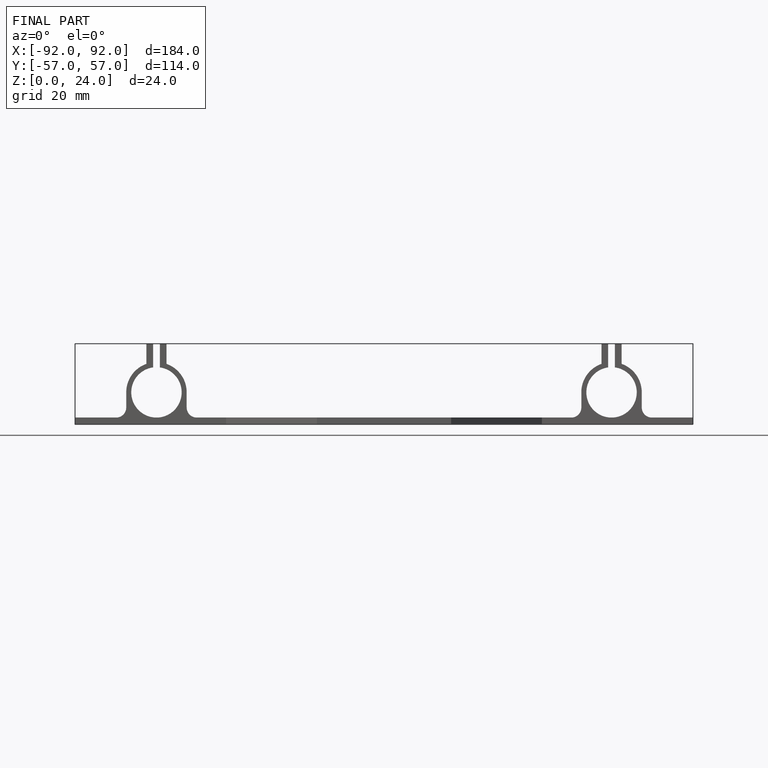
[diagram: finished part — front view with bounding-box wireframe]
